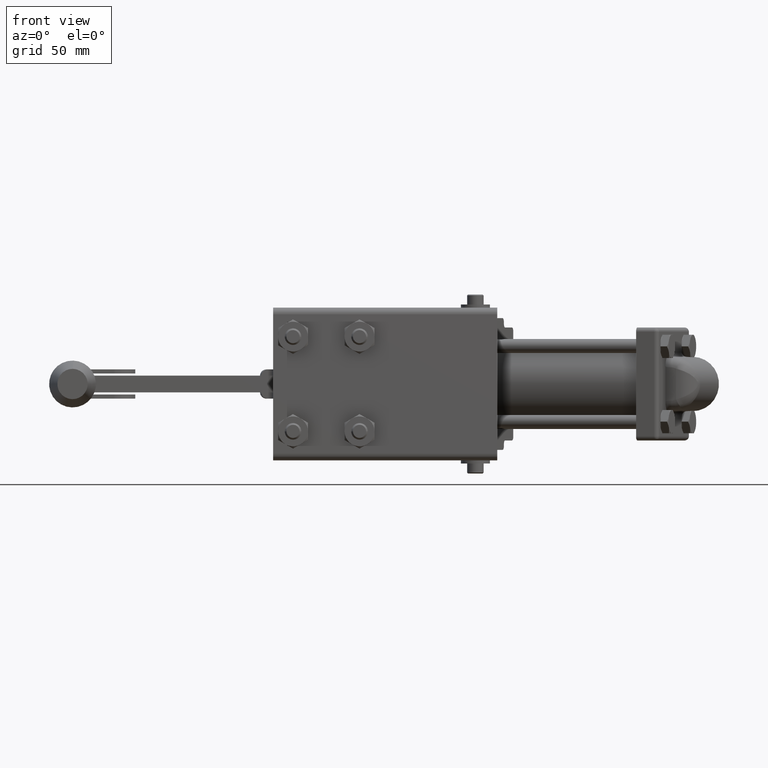
[diagram: clean part render]
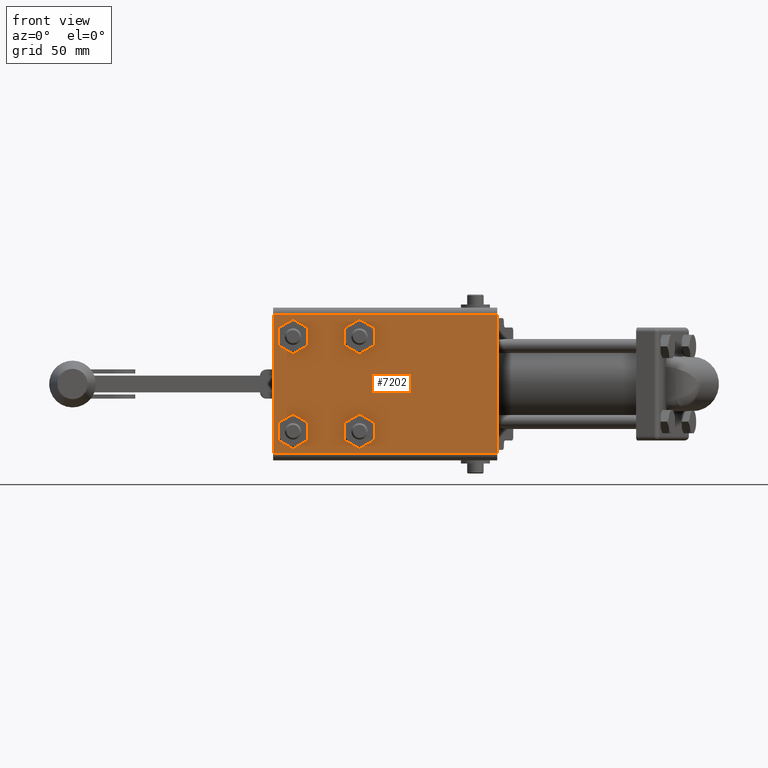
[diagram: same view with one face highlighted and labeled with its STEP entity id]
A machine part, front view. The second image highlights one B-rep face of the part: STEP entity #7202.
In plain terms, the highlighted planar face has unit normal (0, 1, 0).
Its self-contained STEP definition (entity closure, byte-faithful):
#10 = ORIENTED_EDGE ( 'NONE', *, *, #17212, .F. ) ;
#32 = AXIS2_PLACEMENT_3D ( 'NONE', #23571, #8540, #26115 ) ;
#279 = VERTEX_POINT ( 'NONE', #26982 ) ;
#383 = DIRECTION ( 'NONE',  ( 2.813005866653587400E-018, 1.000000000000000000, 1.919918539452345000E-017 ) ) ;
#386 = ORIENTED_EDGE ( 'NONE', *, *, #6224, .F. ) ;
#396 = EDGE_CURVE ( 'NONE', #27901, #21135, #19508, .T. ) ;
#446 = FACE_BOUND ( 'NONE', #11814, .T. ) ;
#659 = CIRCLE ( 'NONE', #4630, 7.137399999999999500 ) ;
#1000 = CARTESIAN_POINT ( 'NONE',  ( -15.83740000000002900, -3.200000000000005100, 22.64999999999998400 ) ) ;
#1022 = CIRCLE ( 'NONE', #8345, 7.137400000000002200 ) ;
#1050 = VERTEX_POINT ( 'NONE', #3964 ) ;
#1172 = EDGE_CURVE ( 'NONE', #32012, #9688, #26217, .T. ) ;
#1369 = CARTESIAN_POINT ( 'NONE',  ( -1.562600000000033700, -3.200000000000006000, -22.65000000000001600 ) ) ;
#1626 = EDGE_CURVE ( 'NONE', #18142, #24191, #18777, .T. ) ;
#1778 = AXIS2_PLACEMENT_3D ( 'NONE', #2863, #20396, #5372 ) ;
#1855 = CARTESIAN_POINT ( 'NONE',  ( -40.50000000000003600, -3.200000000000010800, 22.64999999999998400 ) ) ;
#1867 = CARTESIAN_POINT ( 'NONE',  ( -40.50000000000003600, -3.200000000000006000, -22.65000000000001600 ) ) ;
#2020 = AXIS2_PLACEMENT_3D ( 'NONE', #22176, #7163, #24728 ) ;
#2286 = EDGE_CURVE ( 'NONE', #16794, #4982, #15996, .T. ) ;
#2292 = EDGE_CURVE ( 'NONE', #21135, #10671, #22660, .T. ) ;
#2863 = CARTESIAN_POINT ( 'NONE',  ( -8.700000000000034800, -3.200000000000006000, -22.65000000000001600 ) ) ;
#2967 = DIRECTION ( 'NONE',  ( 2.813005866653587400E-018, 1.000000000000000000, 1.919918539452345000E-017 ) ) ;
#2977 = CIRCLE ( 'NONE', #16198, 7.137399999999999500 ) ;
#3023 = DIRECTION ( 'NONE',  ( -2.813005866653587400E-018, -1.000000000000000000, -1.919918539452345000E-017 ) ) ;
#3119 = CIRCLE ( 'NONE', #29570, 7.137400000000002200 ) ;
#3485 = CARTESIAN_POINT ( 'NONE',  ( -12.26870000000004900, -3.200000000000006000, 28.83116971697103600 ) ) ;
#3589 = AXIS2_PLACEMENT_3D ( 'NONE', #10337, #27919, #12845 ) ;
#3690 = VERTEX_POINT ( 'NONE', #20540 ) ;
#3964 = CARTESIAN_POINT ( 'NONE',  ( -50.00000000000002800, -3.199999999999998000, -33.29000000000000600 ) ) ;
#4072 = ORIENTED_EDGE ( 'NONE', *, *, #19485, .T. ) ;
#4203 = ORIENTED_EDGE ( 'NONE', *, *, #28503, .T. ) ;
#4213 = EDGE_CURVE ( 'NONE', #4982, #22399, #6364, .T. ) ;
#4364 = CIRCLE ( 'NONE', #6210, 7.137400000000002200 ) ;
#4381 = DIRECTION ( 'NONE',  ( 1.000000000000000000, 0.0000000000000000000, 0.0000000000000000000 ) ) ;
#4398 = DIRECTION ( 'NONE',  ( 1.000000000000000000, 0.0000000000000000000, 2.430469745252902400E-015 ) ) ;
#4431 = CARTESIAN_POINT ( 'NONE',  ( -40.50000000000003600, -3.200000000000010800, 22.64999999999998400 ) ) ;
#4541 = CARTESIAN_POINT ( 'NONE',  ( 57.19999999999997400, -3.199999999999998000, -33.29000000000000600 ) ) ;
#4630 = AXIS2_PLACEMENT_3D ( 'NONE', #24780, #9751, #27338 ) ;
#4696 = DIRECTION ( 'NONE',  ( 2.813005866653587400E-018, 1.000000000000000000, 1.919918539452345000E-017 ) ) ;
#4720 = ORIENTED_EDGE ( 'NONE', *, *, #396, .T. ) ;
#4982 = VERTEX_POINT ( 'NONE', #3485 ) ;
#5047 = DIRECTION ( 'NONE',  ( 0.0000000000000000000, 1.224606353822377300E-016, -1.000000000000000000 ) ) ;
#5219 = EDGE_CURVE ( 'NONE', #24191, #22591, #7465, .T. ) ;
#5372 = DIRECTION ( 'NONE',  ( 1.000000000000000000, 0.0000000000000000000, 1.944375796202322800E-015 ) ) ;
#5374 = AXIS2_PLACEMENT_3D ( 'NONE', #29235, #14153, #31767 ) ;
#5463 = EDGE_CURVE ( 'NONE', #22591, #25109, #3119, .T. ) ;
#5466 = CIRCLE ( 'NONE', #5374, 7.137400000000002200 ) ;
#5555 = CARTESIAN_POINT ( 'NONE',  ( 57.19999999999997400, -3.200000000000006800, 36.49999999999998600 ) ) ;
#5636 = CARTESIAN_POINT ( 'NONE',  ( -8.700000000000034800, -3.200000000000006000, -22.65000000000001600 ) ) ;
#5896 = EDGE_CURVE ( 'NONE', #10671, #22461, #19186, .T. ) ;
#5937 = DIRECTION ( 'NONE',  ( 2.813005866653587400E-018, 1.000000000000000000, 1.919918539452345000E-017 ) ) ;
#6017 = VERTEX_POINT ( 'NONE', #31010 ) ;
#6174 = AXIS2_PLACEMENT_3D ( 'NONE', #17983, #2967, #20505 ) ;
#6210 = AXIS2_PLACEMENT_3D ( 'NONE', #28417, #13345, #30949 ) ;
#6214 = LINE ( 'NONE', #17551, #26274 ) ;
#6224 = EDGE_CURVE ( 'NONE', #11477, #25109, #28049, .T. ) ;
#6235 = EDGE_CURVE ( 'NONE', #15329, #23031, #22091, .T. ) ;
#6364 = CIRCLE ( 'NONE', #3589, 7.137399999999999500 ) ;
#6455 = EDGE_CURVE ( 'NONE', #23031, #1050, #30396, .T. ) ;
#6638 = EDGE_CURVE ( 'NONE', #22461, #279, #18915, .T. ) ;
#6839 = CARTESIAN_POINT ( 'NONE',  ( -40.50000000000003600, -3.200000000000006000, -22.65000000000001600 ) ) ;
#6942 = DIRECTION ( 'NONE',  ( 1.000000000000000000, 0.0000000000000000000, 0.0000000000000000000 ) ) ;
#7027 = DIRECTION ( 'NONE',  ( -1.000000000000000000, -0.0000000000000000000, -0.0000000000000000000 ) ) ;
#7163 = DIRECTION ( 'NONE',  ( 2.813005866653587400E-018, 1.000000000000000000, 1.919918539452345000E-017 ) ) ;
#7202 = ADVANCED_FACE ( 'NONE', ( #20434, #27156, #7886, #446, #26379 ), #27135, .F. ) ;
#7465 = CIRCLE ( 'NONE', #9974, 7.137400000000002200 ) ;
#7574 = ORIENTED_EDGE ( 'NONE', *, *, #8587, .T. ) ;
#7620 = DIRECTION ( 'NONE',  ( 2.813005866653587400E-018, 1.000000000000000000, 1.919918539452345000E-017 ) ) ;
#7886 = FACE_BOUND ( 'NONE', #31724, .T. ) ;
#8173 = DIRECTION ( 'NONE',  ( 1.000000000000000000, 0.0000000000000000000, 0.0000000000000000000 ) ) ;
#8345 = AXIS2_PLACEMENT_3D ( 'NONE', #4431, #21955, #6942 ) ;
#8436 = DIRECTION ( 'NONE',  ( -2.813005866653587400E-018, -1.000000000000000000, -1.919918539452345000E-017 ) ) ;
#8540 = DIRECTION ( 'NONE',  ( 2.813005866653587400E-018, 1.000000000000000000, 1.919918539452345000E-017 ) ) ;
#8587 = EDGE_CURVE ( 'NONE', #279, #16171, #27771, .T. ) ;
#8616 = CARTESIAN_POINT ( 'NONE',  ( -8.700000000000034800, -3.200000000000010800, 22.64999999999998400 ) ) ;
#8735 = CIRCLE ( 'NONE', #15828, 7.137399999999999500 ) ;
#8750 = ORIENTED_EDGE ( 'NONE', *, *, #4213, .T. ) ;
#8946 = AXIS2_PLACEMENT_3D ( 'NONE', #19704, #4696, #22216 ) ;
#9154 = EDGE_CURVE ( 'NONE', #3690, #11082, #2977, .T. ) ;
#9320 = ORIENTED_EDGE ( 'NONE', *, *, #9796, .T. ) ;
#9353 = CARTESIAN_POINT ( 'NONE',  ( -33.36260000000003600, -3.200000000000010800, 22.64999999999998400 ) ) ;
#9369 = DIRECTION ( 'NONE',  ( 1.000000000000000000, 0.0000000000000000000, -1.944375796202322100E-015 ) ) ;
#9543 = VERTEX_POINT ( 'NONE', #11822 ) ;
#9688 = VERTEX_POINT ( 'NONE', #30531 ) ;
#9703 = ORIENTED_EDGE ( 'NONE', *, *, #25908, .T. ) ;
#9731 = CARTESIAN_POINT ( 'NONE',  ( -8.700000000000034800, -3.200000000000006000, -22.65000000000001600 ) ) ;
#9751 = DIRECTION ( 'NONE',  ( 2.813005866653587400E-018, 1.000000000000000000, 1.919918539452345000E-017 ) ) ;
#9796 = EDGE_CURVE ( 'NONE', #28003, #3690, #8735, .T. ) ;
#9842 = CARTESIAN_POINT ( 'NONE',  ( -1.562600000000032000, -3.200000000000005100, 22.64999999999998400 ) ) ;
#9974 = AXIS2_PLACEMENT_3D ( 'NONE', #6839, #24403, #9369 ) ;
#10337 = CARTESIAN_POINT ( 'NONE',  ( -8.700000000000034800, -3.200000000000010800, 22.64999999999998400 ) ) ;
#10671 = VERTEX_POINT ( 'NONE', #24483 ) ;
#10712 = CIRCLE ( 'NONE', #15640, 7.137400000000002200 ) ;
#10770 = EDGE_LOOP ( 'NONE', ( #10, #9703, #12768, #30624, #4203, #32565 ) ) ;
#10849 = CARTESIAN_POINT ( 'NONE',  ( -40.50000000000003600, -3.200000000000010800, 22.64999999999998400 ) ) ;
#10956 = DIRECTION ( 'NONE',  ( 2.813005866653587400E-018, 1.000000000000000000, 1.919918539452345000E-017 ) ) ;
#11082 = VERTEX_POINT ( 'NONE', #15405 ) ;
#11107 = VECTOR ( 'NONE', #31396, 1000.000000000000000 ) ;
#11132 = DIRECTION ( 'NONE',  ( 1.000000000000000000, 0.0000000000000000000, 0.0000000000000000000 ) ) ;
#11190 = EDGE_CURVE ( 'NONE', #28003, #22399, #21914, .T. ) ;
#11477 = VERTEX_POINT ( 'NONE', #14596 ) ;
#11570 = EDGE_CURVE ( 'NONE', #12157, #1050, #6214, .T. ) ;
#11805 = ORIENTED_EDGE ( 'NONE', *, *, #5219, .T. ) ;
#11814 = EDGE_LOOP ( 'NONE', ( #19679, #24325, #31647, #11805, #16478, #386 ) ) ;
#11822 = CARTESIAN_POINT ( 'NONE',  ( -44.06870000000005700, -3.200000000000004200, 16.46883028302891800 ) ) ;
#12157 = VERTEX_POINT ( 'NONE', #23683 ) ;
#12257 = DIRECTION ( 'NONE',  ( 1.000000000000000000, 0.0000000000000000000, 0.0000000000000000000 ) ) ;
#12300 = CARTESIAN_POINT ( 'NONE',  ( -8.700000000000034800, -3.200000000000010800, 22.64999999999998400 ) ) ;
#12768 = ORIENTED_EDGE ( 'NONE', *, *, #17850, .T. ) ;
#12845 = DIRECTION ( 'NONE',  ( 1.000000000000000000, 0.0000000000000000000, 0.0000000000000000000 ) ) ;
#13104 = ORIENTED_EDGE ( 'NONE', *, *, #6455, .F. ) ;
#13160 = CIRCLE ( 'NONE', #32, 7.137400000000002200 ) ;
#13345 = DIRECTION ( 'NONE',  ( -2.813005866653587400E-018, -1.000000000000000000, -1.919918539452345000E-017 ) ) ;
#13366 = DIRECTION ( 'NONE',  ( 1.000000000000000000, 0.0000000000000000000, 0.0000000000000000000 ) ) ;
#13746 = CARTESIAN_POINT ( 'NONE',  ( -36.93130000000004300, -3.199999999999998800, -28.83116971697109700 ) ) ;
#13875 = CARTESIAN_POINT ( 'NONE',  ( 57.19999999999997400, -3.199999999999998000, -33.29000000000000600 ) ) ;
#14153 = DIRECTION ( 'NONE',  ( 2.813005866653587400E-018, 1.000000000000000000, 1.919918539452345000E-017 ) ) ;
#14434 = CARTESIAN_POINT ( 'NONE',  ( -47.63740000000003500, -3.199999999999999300, -22.65000000000001600 ) ) ;
#14596 = CARTESIAN_POINT ( 'NONE',  ( -33.36260000000003600, -3.199999999999999300, -22.65000000000001600 ) ) ;
#14648 = VERTEX_POINT ( 'NONE', #26875 ) ;
#14684 = CARTESIAN_POINT ( 'NONE',  ( 57.19999999999997400, -3.200000000000006800, 36.49999999999998600 ) ) ;
#14811 = DIRECTION ( 'NONE',  ( 1.000000000000000000, 0.0000000000000000000, 0.0000000000000000000 ) ) ;
#14960 = EDGE_LOOP ( 'NONE', ( #21431, #4720, #26436, #19198, #21313, #7574 ) ) ;
#14991 = ORIENTED_EDGE ( 'NONE', *, *, #6235, .F. ) ;
#15197 = EDGE_CURVE ( 'NONE', #15329, #12157, #29684, .T. ) ;
#15303 = CARTESIAN_POINT ( 'NONE',  ( -5.131300000000026200, -3.200000000000010800, 28.83116971697103300 ) ) ;
#15329 = VERTEX_POINT ( 'NONE', #17656 ) ;
#15391 = CARTESIAN_POINT ( 'NONE',  ( -40.50000000000003600, -3.200000000000006000, -22.65000000000001600 ) ) ;
#15405 = CARTESIAN_POINT ( 'NONE',  ( -12.26870000000006300, -3.200000000000004200, 16.46883028302893600 ) ) ;
#15640 = AXIS2_PLACEMENT_3D ( 'NONE', #20963, #5937, #23513 ) ;
#15828 = AXIS2_PLACEMENT_3D ( 'NONE', #26008, #10956, #28552 ) ;
#15996 = CIRCLE ( 'NONE', #8946, 7.137399999999999500 ) ;
#16171 = VERTEX_POINT ( 'NONE', #28494 ) ;
#16198 = AXIS2_PLACEMENT_3D ( 'NONE', #12300, #29917, #14811 ) ;
#16271 = VECTOR ( 'NONE', #7027, 1000.000000000000000 ) ;
#16423 = CARTESIAN_POINT ( 'NONE',  ( -44.06870000000004900, -3.199999999999998800, -28.83116971697105400 ) ) ;
#16478 = ORIENTED_EDGE ( 'NONE', *, *, #5463, .T. ) ;
#16794 = VERTEX_POINT ( 'NONE', #1000 ) ;
#17212 = EDGE_CURVE ( 'NONE', #24825, #9688, #4364, .T. ) ;
#17215 = DIRECTION ( 'NONE',  ( 0.0000000000000000000, -1.224606353822377500E-016, 1.000000000000000000 ) ) ;
#17349 = AXIS2_PLACEMENT_3D ( 'NONE', #9731, #27319, #12257 ) ;
#17463 = ORIENTED_EDGE ( 'NONE', *, *, #11570, .T. ) ;
#17537 = AXIS2_PLACEMENT_3D ( 'NONE', #1867, #19407, #4398 ) ;
#17551 = CARTESIAN_POINT ( 'NONE',  ( -50.00000000000002800, -3.200000000000006800, 36.49999999999998600 ) ) ;
#17656 = CARTESIAN_POINT ( 'NONE',  ( 57.19999999999997400, -3.200000000000006400, 33.28999999999998500 ) ) ;
#17726 = AXIS2_PLACEMENT_3D ( 'NONE', #1855, #19390, #4381 ) ;
#17850 = EDGE_CURVE ( 'NONE', #14648, #9543, #5466, .T. ) ;
#17891 = DIRECTION ( 'NONE',  ( 1.000000000000000000, 0.0000000000000000000, 1.944375796202322100E-015 ) ) ;
#17983 = CARTESIAN_POINT ( 'NONE',  ( -40.50000000000003600, -3.200000000000006000, -22.65000000000001600 ) ) ;
#18040 = CARTESIAN_POINT ( 'NONE',  ( -40.50000000000003600, -3.200000000000006000, -22.65000000000001600 ) ) ;
#18142 = VERTEX_POINT ( 'NONE', #16423 ) ;
#18777 = CIRCLE ( 'NONE', #17537, 7.137400000000002200 ) ;
#18915 = CIRCLE ( 'NONE', #2020, 7.137399999999999500 ) ;
#19186 = CIRCLE ( 'NONE', #1778, 7.137399999999999500 ) ;
#19198 = ORIENTED_EDGE ( 'NONE', *, *, #5896, .T. ) ;
#19216 = CIRCLE ( 'NONE', #26960, 7.137400000000002200 ) ;
#19390 = DIRECTION ( 'NONE',  ( 2.813005866653587400E-018, 1.000000000000000000, 1.919918539452345000E-017 ) ) ;
#19407 = DIRECTION ( 'NONE',  ( 2.813005866653587400E-018, 1.000000000000000000, 1.919918539452345000E-017 ) ) ;
#19485 = EDGE_CURVE ( 'NONE', #11082, #16794, #659, .T. ) ;
#19508 = CIRCLE ( 'NONE', #29333, 7.137399999999999500 ) ;
#19679 = ORIENTED_EDGE ( 'NONE', *, *, #19816, .T. ) ;
#19704 = CARTESIAN_POINT ( 'NONE',  ( -8.700000000000034800, -3.200000000000010800, 22.64999999999998400 ) ) ;
#19774 = CARTESIAN_POINT ( 'NONE',  ( -5.131300000000015500, -3.199999999999998400, -28.83116971697108300 ) ) ;
#19816 = EDGE_CURVE ( 'NONE', #11477, #31132, #13160, .T. ) ;
#20252 = ORIENTED_EDGE ( 'NONE', *, *, #9154, .T. ) ;
#20311 = AXIS2_PLACEMENT_3D ( 'NONE', #14684, #32293, #17215 ) ;
#20396 = DIRECTION ( 'NONE',  ( 2.813005866653587400E-018, 1.000000000000000000, 1.919918539452345000E-017 ) ) ;
#20434 = FACE_BOUND ( 'NONE', #14960, .T. ) ;
#20505 = DIRECTION ( 'NONE',  ( 1.000000000000000000, 0.0000000000000000000, 9.721878981011610300E-016 ) ) ;
#20540 = CARTESIAN_POINT ( 'NONE',  ( -5.131300000000040400, -3.200000000000004200, 16.46883028302891100 ) ) ;
#20573 = DIRECTION ( 'NONE',  ( 1.000000000000000000, 0.0000000000000000000, 0.0000000000000000000 ) ) ;
#20650 = ORIENTED_EDGE ( 'NONE', *, *, #15197, .T. ) ;
#20963 = CARTESIAN_POINT ( 'NONE',  ( -40.50000000000003600, -3.200000000000010800, 22.64999999999998400 ) ) ;
#21135 = VERTEX_POINT ( 'NONE', #19774 ) ;
#21310 = VECTOR ( 'NONE', #23111, 1000.000000000000000 ) ;
#21313 = ORIENTED_EDGE ( 'NONE', *, *, #6638, .T. ) ;
#21410 = AXIS2_PLACEMENT_3D ( 'NONE', #22634, #7620, #25170 ) ;
#21431 = ORIENTED_EDGE ( 'NONE', *, *, #27259, .F. ) ;
#21450 = EDGE_CURVE ( 'NONE', #9543, #6017, #10712, .T. ) ;
#21914 = CIRCLE ( 'NONE', #27694, 7.137400000000000400 ) ;
#21955 = DIRECTION ( 'NONE',  ( 2.813005866653587400E-018, 1.000000000000000000, 1.919918539452345000E-017 ) ) ;
#22045 = CARTESIAN_POINT ( 'NONE',  ( 57.19999999999997400, -3.200000000000006400, 33.28999999999998500 ) ) ;
#22091 = LINE ( 'NONE', #5555, #21310 ) ;
#22176 = CARTESIAN_POINT ( 'NONE',  ( -8.700000000000034800, -3.200000000000006000, -22.65000000000001600 ) ) ;
#22216 = DIRECTION ( 'NONE',  ( 1.000000000000000000, 0.0000000000000000000, 0.0000000000000000000 ) ) ;
#22399 = VERTEX_POINT ( 'NONE', #15303 ) ;
#22461 = VERTEX_POINT ( 'NONE', #25636 ) ;
#22591 = VERTEX_POINT ( 'NONE', #25979 ) ;
#22634 = CARTESIAN_POINT ( 'NONE',  ( -8.700000000000034800, -3.200000000000006000, -22.65000000000001600 ) ) ;
#22660 = CIRCLE ( 'NONE', #17349, 7.137399999999999500 ) ;
#23031 = VERTEX_POINT ( 'NONE', #4541 ) ;
#23111 = DIRECTION ( 'NONE',  ( 0.0000000000000000000, 1.224606353822377300E-016, -1.000000000000000000 ) ) ;
#23188 = DIRECTION ( 'NONE',  ( 2.813005866653587400E-018, 1.000000000000000000, 1.919918539452345000E-017 ) ) ;
#23468 = CARTESIAN_POINT ( 'NONE',  ( -8.700000000000034800, -3.200000000000006000, -22.65000000000001600 ) ) ;
#23513 = DIRECTION ( 'NONE',  ( 1.000000000000000000, 0.0000000000000000000, 1.944375796202322100E-015 ) ) ;
#23571 = CARTESIAN_POINT ( 'NONE',  ( -40.50000000000003600, -3.200000000000006000, -22.65000000000001600 ) ) ;
#23683 = CARTESIAN_POINT ( 'NONE',  ( -50.00000000000002800, -3.200000000000006400, 33.28999999999998500 ) ) ;
#24191 = VERTEX_POINT ( 'NONE', #14434 ) ;
#24325 = ORIENTED_EDGE ( 'NONE', *, *, #26838, .T. ) ;
#24403 = DIRECTION ( 'NONE',  ( 2.813005866653587400E-018, 1.000000000000000000, 1.919918539452345000E-017 ) ) ;
#24471 = AXIS2_PLACEMENT_3D ( 'NONE', #23468, #8436, #26013 ) ;
#24483 = CARTESIAN_POINT ( 'NONE',  ( -12.26870000000005200, -3.199999999999998400, -28.83116971697108300 ) ) ;
#24728 = DIRECTION ( 'NONE',  ( 1.000000000000000000, 0.0000000000000000000, 0.0000000000000000000 ) ) ;
#24780 = CARTESIAN_POINT ( 'NONE',  ( -8.700000000000034800, -3.200000000000010800, 22.64999999999998400 ) ) ;
#24825 = VERTEX_POINT ( 'NONE', #9353 ) ;
#25009 = CIRCLE ( 'NONE', #6174, 7.137400000000002200 ) ;
#25109 = VERTEX_POINT ( 'NONE', #25592 ) ;
#25170 = DIRECTION ( 'NONE',  ( 1.000000000000000000, 0.0000000000000000000, 0.0000000000000000000 ) ) ;
#25325 = CIRCLE ( 'NONE', #24471, 7.137400000000000400 ) ;
#25592 = CARTESIAN_POINT ( 'NONE',  ( -36.93130000000002900, -3.200000000000006000, -16.46883028302896800 ) ) ;
#25636 = CARTESIAN_POINT ( 'NONE',  ( -15.83740000000003600, -3.199999999999999300, -22.65000000000001600 ) ) ;
#25728 = ORIENTED_EDGE ( 'NONE', *, *, #2286, .T. ) ;
#25908 = EDGE_CURVE ( 'NONE', #24825, #14648, #19216, .T. ) ;
#25979 = CARTESIAN_POINT ( 'NONE',  ( -44.06870000000005700, -3.200000000000000200, -16.46883028302897100 ) ) ;
#26008 = CARTESIAN_POINT ( 'NONE',  ( -8.700000000000034800, -3.200000000000010800, 22.64999999999998400 ) ) ;
#26013 = DIRECTION ( 'NONE',  ( 1.000000000000000000, 0.0000000000000000000, 0.0000000000000000000 ) ) ;
#26115 = DIRECTION ( 'NONE',  ( 1.000000000000000000, 0.0000000000000000000, 0.0000000000000000000 ) ) ;
#26192 = DIRECTION ( 'NONE',  ( -2.813005866653587400E-018, -1.000000000000000000, -1.919918539452345000E-017 ) ) ;
#26217 = CIRCLE ( 'NONE', #17726, 7.137400000000002200 ) ;
#26274 = VECTOR ( 'NONE', #5047, 1000.000000000000000 ) ;
#26379 = FACE_OUTER_BOUND ( 'NONE', #30290, .T. ) ;
#26436 = ORIENTED_EDGE ( 'NONE', *, *, #2292, .T. ) ;
#26838 = EDGE_CURVE ( 'NONE', #31132, #18142, #25009, .T. ) ;
#26875 = CARTESIAN_POINT ( 'NONE',  ( -36.93130000000002200, -3.200000000000004200, 16.46883028302892200 ) ) ;
#26960 = AXIS2_PLACEMENT_3D ( 'NONE', #10849, #28451, #13366 ) ;
#26982 = CARTESIAN_POINT ( 'NONE',  ( -12.26870000000004200, -3.200000000000000200, -16.46883028302896400 ) ) ;
#27135 = PLANE ( 'NONE',  #20311 ) ;
#27156 = FACE_BOUND ( 'NONE', #10770, .T. ) ;
#27259 = EDGE_CURVE ( 'NONE', #27901, #16171, #25325, .T. ) ;
#27319 = DIRECTION ( 'NONE',  ( 2.813005866653587400E-018, 1.000000000000000000, 1.919918539452345000E-017 ) ) ;
#27338 = DIRECTION ( 'NONE',  ( 1.000000000000000000, 0.0000000000000000000, 0.0000000000000000000 ) ) ;
#27694 = AXIS2_PLACEMENT_3D ( 'NONE', #8616, #26192, #11132 ) ;
#27771 = CIRCLE ( 'NONE', #21410, 7.137399999999999500 ) ;
#27901 = VERTEX_POINT ( 'NONE', #1369 ) ;
#27919 = DIRECTION ( 'NONE',  ( 2.813005866653587400E-018, 1.000000000000000000, 1.919918539452345000E-017 ) ) ;
#27990 = CARTESIAN_POINT ( 'NONE',  ( -44.06870000000004200, -3.200000000000006000, 28.83116971697103600 ) ) ;
#28003 = VERTEX_POINT ( 'NONE', #9842 ) ;
#28004 = ORIENTED_EDGE ( 'NONE', *, *, #11190, .F. ) ;
#28049 = CIRCLE ( 'NONE', #30877, 7.137400000000002200 ) ;
#28417 = CARTESIAN_POINT ( 'NONE',  ( -40.50000000000003600, -3.200000000000010800, 22.64999999999998400 ) ) ;
#28451 = DIRECTION ( 'NONE',  ( 2.813005866653587400E-018, 1.000000000000000000, 1.919918539452345000E-017 ) ) ;
#28494 = CARTESIAN_POINT ( 'NONE',  ( -5.131300000000026200, -3.200000000000000200, -16.46883028302896800 ) ) ;
#28503 = EDGE_CURVE ( 'NONE', #6017, #32012, #1022, .T. ) ;
#28552 = DIRECTION ( 'NONE',  ( 1.000000000000000000, 0.0000000000000000000, 0.0000000000000000000 ) ) ;
#29235 = CARTESIAN_POINT ( 'NONE',  ( -40.50000000000003600, -3.200000000000010800, 22.64999999999998400 ) ) ;
#29333 = AXIS2_PLACEMENT_3D ( 'NONE', #5636, #23188, #8173 ) ;
#29570 = AXIS2_PLACEMENT_3D ( 'NONE', #15391, #383, #17891 ) ;
#29684 = LINE ( 'NONE', #22045, #16271 ) ;
#29917 = DIRECTION ( 'NONE',  ( 2.813005866653587400E-018, 1.000000000000000000, 1.919918539452345000E-017 ) ) ;
#30290 = EDGE_LOOP ( 'NONE', ( #17463, #13104, #14991, #20650 ) ) ;
#30396 = LINE ( 'NONE', #13875, #11107 ) ;
#30531 = CARTESIAN_POINT ( 'NONE',  ( -36.93130000000002900, -3.200000000000006000, 28.83116971697103300 ) ) ;
#30624 = ORIENTED_EDGE ( 'NONE', *, *, #21450, .T. ) ;
#30877 = AXIS2_PLACEMENT_3D ( 'NONE', #18040, #3023, #20573 ) ;
#30949 = DIRECTION ( 'NONE',  ( 1.000000000000000000, 0.0000000000000000000, 0.0000000000000000000 ) ) ;
#31010 = CARTESIAN_POINT ( 'NONE',  ( -47.63740000000003500, -3.200000000000005100, 22.64999999999998400 ) ) ;
#31132 = VERTEX_POINT ( 'NONE', #13746 ) ;
#31396 = DIRECTION ( 'NONE',  ( -1.000000000000000000, -0.0000000000000000000, -0.0000000000000000000 ) ) ;
#31647 = ORIENTED_EDGE ( 'NONE', *, *, #1626, .T. ) ;
#31724 = EDGE_LOOP ( 'NONE', ( #9320, #20252, #4072, #25728, #8750, #28004 ) ) ;
#31767 = DIRECTION ( 'NONE',  ( 1.000000000000000000, 0.0000000000000000000, -9.721878981011610300E-016 ) ) ;
#32012 = VERTEX_POINT ( 'NONE', #27990 ) ;
#32293 = DIRECTION ( 'NONE',  ( -0.0000000000000000000, 1.000000000000000000, 1.224606353822377500E-016 ) ) ;
#32565 = ORIENTED_EDGE ( 'NONE', *, *, #1172, .T. ) ;